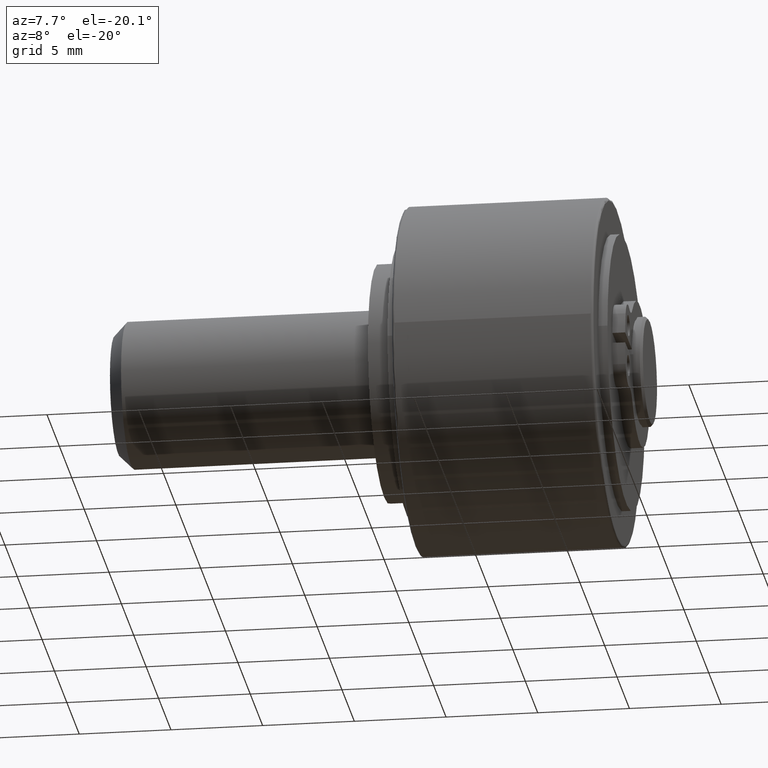
[diagram: clean part render]
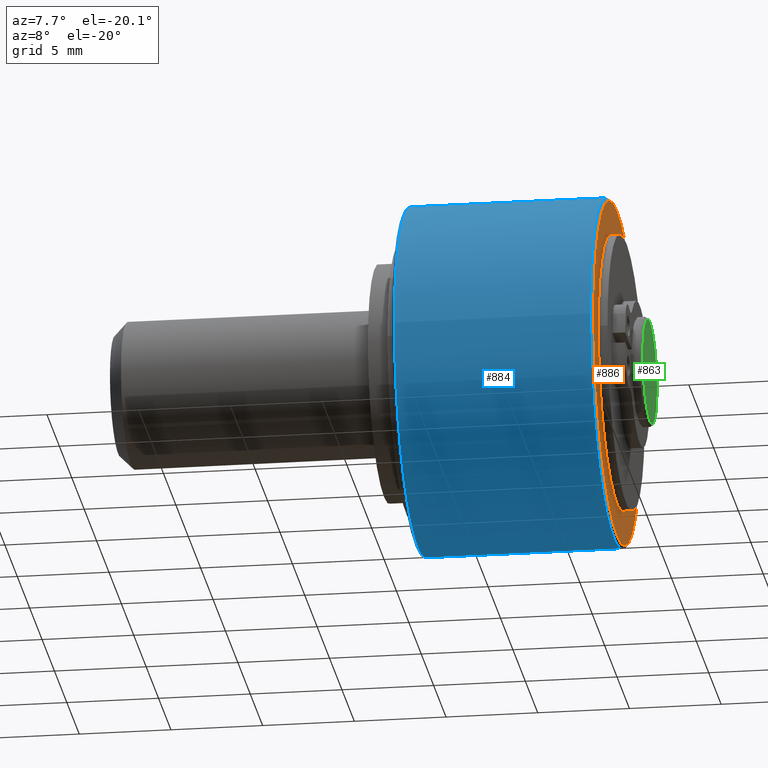
[diagram: same view with three faces highlighted in distinct colors, each labeled with its STEP entity id]
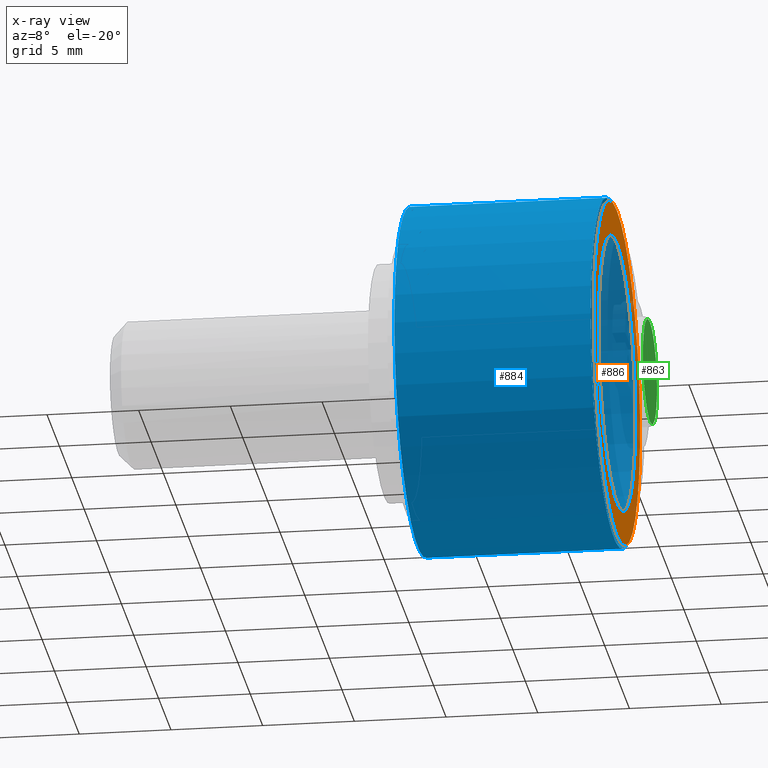
[diagram: x-ray of the same camera — body ghosted, the three highlighted faces saturated]
A machine part, auxiliary view with three faces highlighted in distinct colors.
The next image is the same camera in x-ray (body ghosted, the three faces saturated) — at least one of them is partly hidden behind the body in this view.
Their STEP definitions:

[orange] entity #886 — the highlighted planar face has unit normal (1, 0, 0).
#68=FACE_BOUND('',#222,.T.);
#92=PLANE('',#1058);
#156=FACE_OUTER_BOUND('',#221,.T.);
#221=EDGE_LOOP('',(#747));
#222=EDGE_LOOP('',(#748));
#373=CIRCLE('',#1056,9.35);
#375=CIRCLE('',#1059,7.5);
#453=VERTEX_POINT('',#1592);
#454=VERTEX_POINT('',#1596);
#556=EDGE_CURVE('',#453,#453,#373,.T.);
#558=EDGE_CURVE('',#454,#454,#375,.T.);
#747=ORIENTED_EDGE('',*,*,#556,.T.);
#748=ORIENTED_EDGE('',*,*,#558,.F.);
#886=ADVANCED_FACE('',(#156,#68),#92,.T.);
#1056=AXIS2_PLACEMENT_3D('',#1593,#1277,#1278);
#1058=AXIS2_PLACEMENT_3D('',#1595,#1281,#1282);
#1059=AXIS2_PLACEMENT_3D('',#1597,#1283,#1284);
#1277=DIRECTION('center_axis',(0.,3.06161699786839E-16,-1.));
#1278=DIRECTION('ref_axis',(1.,0.,0.));
#1281=DIRECTION('center_axis',(0.,3.06161699786839E-16,-1.));
#1282=DIRECTION('ref_axis',(-1.,0.,0.));
#1283=DIRECTION('center_axis',(0.,3.06161699786839E-16,-1.));
#1284=DIRECTION('ref_axis',(1.,0.,0.));
#1592=CARTESIAN_POINT('',(9.35,-6.0423621670547E-16,-5.5));
#1593=CARTESIAN_POINT('Origin',(0.,5.40808540497305E-16,-5.5));
#1595=CARTESIAN_POINT('Origin',(0.,7.5,-5.5));
#1596=CARTESIAN_POINT('',(-9.18485099360515E-16,-7.5,-5.5));
#1597=CARTESIAN_POINT('Origin',(0.,5.40808540497305E-16,-5.5));

[blue] entity #884 — the highlighted cylindrical surface (bore or boss wall) has radius 9.5 mm, axis along (1, 0, 0).
#108=CYLINDRICAL_SURFACE('',#1052,9.5);
#154=FACE_OUTER_BOUND('',#219,.T.);
#219=EDGE_LOOP('',(#736,#737,#738,#739,#740,#741));
#275=LINE('',#1589,#319);
#319=VECTOR('',#1272,9.5);
#368=CIRCLE('',#1049,9.5);
#369=CIRCLE('',#1050,9.5);
#371=CIRCLE('',#1053,9.5);
#372=CIRCLE('',#1054,9.5);
#449=VERTEX_POINT('',#1580);
#450=VERTEX_POINT('',#1581);
#451=VERTEX_POINT('',#1586);
#452=VERTEX_POINT('',#1587);
#550=EDGE_CURVE('',#449,#450,#368,.T.);
#551=EDGE_CURVE('',#450,#449,#369,.T.);
#553=EDGE_CURVE('',#451,#452,#371,.T.);
#554=EDGE_CURVE('',#451,#449,#275,.T.);
#555=EDGE_CURVE('',#452,#451,#372,.T.);
#736=ORIENTED_EDGE('',*,*,#553,.F.);
#737=ORIENTED_EDGE('',*,*,#554,.T.);
#738=ORIENTED_EDGE('',*,*,#550,.T.);
#739=ORIENTED_EDGE('',*,*,#551,.T.);
#740=ORIENTED_EDGE('',*,*,#554,.F.);
#741=ORIENTED_EDGE('',*,*,#555,.F.);
#884=ADVANCED_FACE('',(#154),#108,.T.);
#1049=AXIS2_PLACEMENT_3D('',#1582,#1262,#1263);
#1050=AXIS2_PLACEMENT_3D('',#1583,#1264,#1265);
#1052=AXIS2_PLACEMENT_3D('',#1585,#1268,#1269);
#1053=AXIS2_PLACEMENT_3D('',#1588,#1270,#1271);
#1054=AXIS2_PLACEMENT_3D('',#1590,#1273,#1274);
#1262=DIRECTION('center_axis',(0.,3.06161699786839E-16,-1.));
#1263=DIRECTION('ref_axis',(1.,0.,0.));
#1264=DIRECTION('center_axis',(0.,3.06161699786839E-16,-1.));
#1265=DIRECTION('ref_axis',(1.,0.,0.));
#1268=DIRECTION('center_axis',(0.,3.06161699786839E-16,-1.));
#1269=DIRECTION('ref_axis',(0.,1.,3.70074341541719E-16));
#1270=DIRECTION('center_axis',(0.,3.06161699786839E-16,-1.));
#1271=DIRECTION('ref_axis',(1.,0.,0.));
#1272=DIRECTION('',(0.,-3.06161699786839E-16,1.));
#1273=DIRECTION('center_axis',(0.,3.06161699786839E-16,-1.));
#1274=DIRECTION('ref_axis',(1.,0.,0.));
#1580=CARTESIAN_POINT('',(-1.16341445918999E-15,-9.5,5.35));
#1581=CARTESIAN_POINT('',(9.5,-3.94446036137988E-15,5.35));
#1582=CARTESIAN_POINT('Origin',(0.,-2.78104590218989E-15,5.35));
#1583=CARTESIAN_POINT('Origin',(0.,-2.78104590218989E-15,5.35));
#1585=CARTESIAN_POINT('Origin',(0.,-1.14308080833031E-15,-2.91433543964104E-15));
#1586=CARTESIAN_POINT('',(-1.16341445918999E-15,-9.5,-5.35));
#1587=CARTESIAN_POINT('',(9.5,-6.68530173660706E-16,-5.35));
#1588=CARTESIAN_POINT('Origin',(0.,4.94884285529279E-16,-5.35));
#1589=CARTESIAN_POINT('',(-1.16341445918999E-15,-9.5,-6.43004168428737E-15));
#1590=CARTESIAN_POINT('Origin',(0.,4.94884285529279E-16,-5.35));

[green] entity #863 — the highlighted planar face has unit normal (1, 0, 0).
#79=PLANE('',#1014);
#133=FACE_OUTER_BOUND('',#192,.T.);
#192=EDGE_LOOP('',(#649));
#352=CIRCLE('',#1010,2.85);
#421=VERTEX_POINT('',#1463);
#508=EDGE_CURVE('',#421,#421,#352,.T.);
#649=ORIENTED_EDGE('',*,*,#508,.F.);
#863=ADVANCED_FACE('',(#133),#79,.T.);
#1010=AXIS2_PLACEMENT_3D('',#1464,#1170,#1171);
#1014=AXIS2_PLACEMENT_3D('',#1472,#1180,#1181);
#1170=DIRECTION('center_axis',(-1.,0.,0.));
#1171=DIRECTION('ref_axis',(0.,0.,1.));
#1180=DIRECTION('center_axis',(1.,0.,0.));
#1181=DIRECTION('ref_axis',(0.,0.,-1.));
#1463=CARTESIAN_POINT('',(14.5,-3.49024337756996E-16,-2.85));
#1464=CARTESIAN_POINT('Origin',(14.5,0.,0.));
#1472=CARTESIAN_POINT('Origin',(14.5,-7.70988211545247E-17,1.84813812287733E-16));